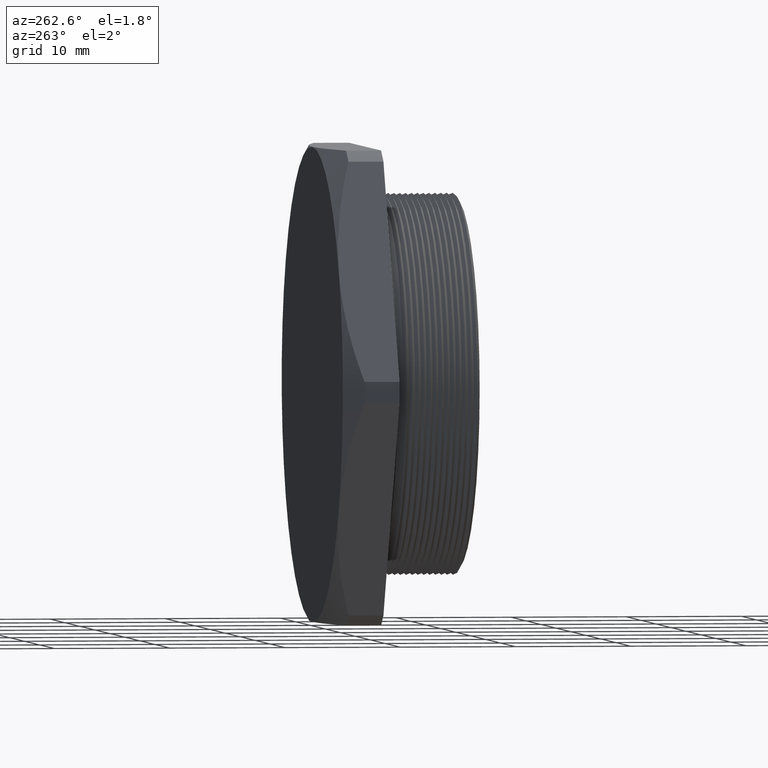
[diagram: clean part render]
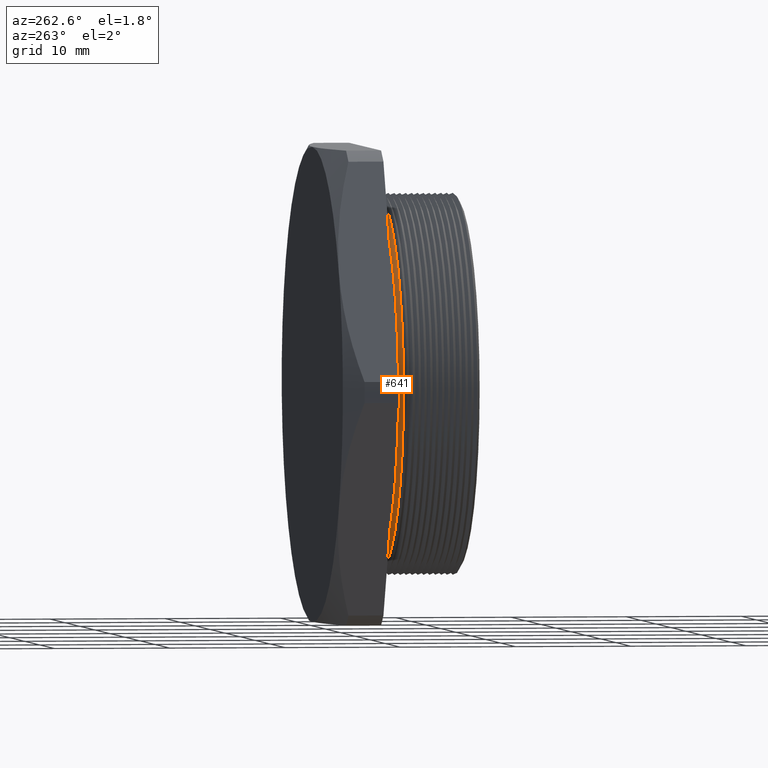
[diagram: same view with one face highlighted and labeled with its STEP entity id]
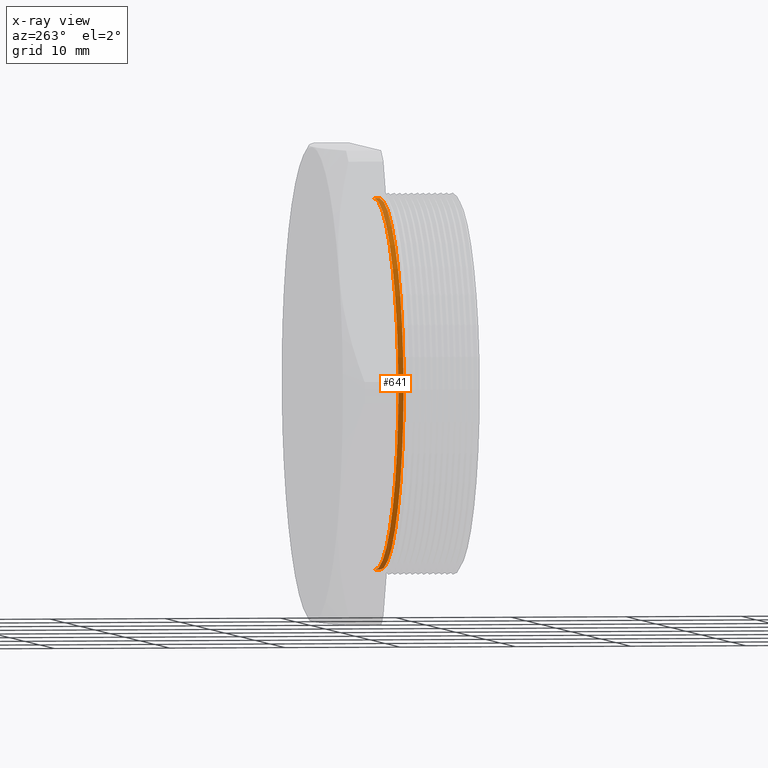
[diagram: x-ray of the same camera — body ghosted, the highlighted face saturated]
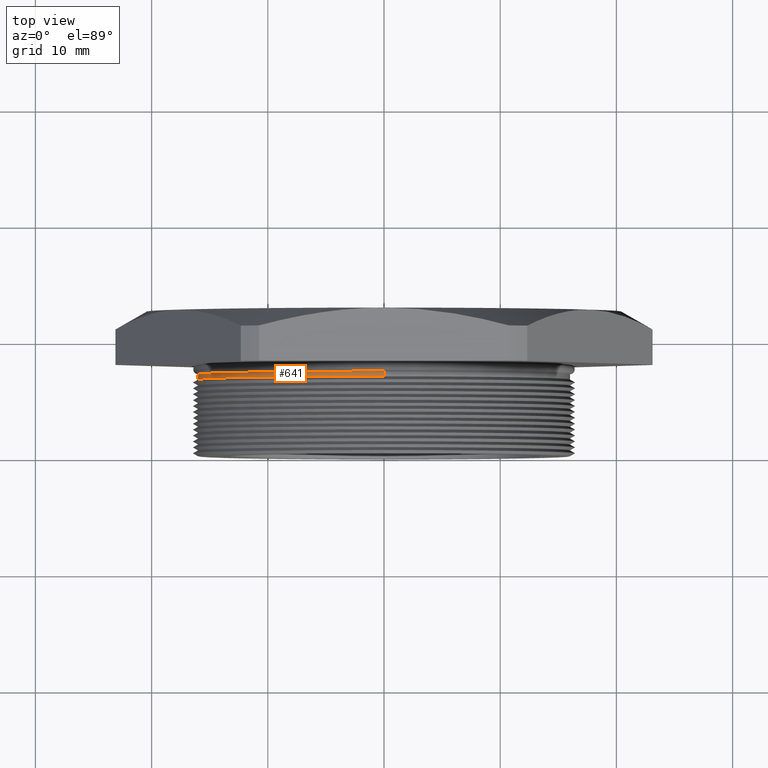
[diagram: same view with one face highlighted and labeled with its STEP entity id]
A machine part, auxiliary view. The second image highlights one B-rep face of the part: STEP entity #641.
The next image is the same camera in x-ray: the body ghosted, the highlighted face saturated — about 12% of this face is hidden behind the body in this view.
A second angle (top view) of the same face is appended — the face is thin or edge-on in the first view.
In plain terms, the highlighted cylindrical surface (partial cylindrical patch) has radius 16.002 mm, axis along (0, -1, 0).
Its self-contained STEP definition (entity closure, byte-faithful):
#358 = VERTEX_POINT ( 'NONE', #1365 ) ;
#410 = VERTEX_POINT ( 'NONE', #1454 ) ;
#542 = EDGE_CURVE ( 'NONE', #410, #548, #1715, .T. ) ;
#545 = EDGE_CURVE ( 'NONE', #358, #547, #1711, .T. ) ;
#547 = VERTEX_POINT ( 'NONE', #1707 ) ;
#548 = VERTEX_POINT ( 'NONE', #1706 ) ;
#641 = ADVANCED_FACE ( 'NONE', ( #1887 ), #1886, .T. ) ;
#642 = EDGE_LOOP ( 'NONE', ( #643, #644, #657, #658 ) ) ;
#643 = ORIENTED_EDGE ( 'NONE', *, *, #542, .F. ) ;
#644 = ORIENTED_EDGE ( 'NONE', *, *, #656, .F. ) ;
#656 = EDGE_CURVE ( 'NONE', #358, #410, #1930, .T. ) ;
#657 = ORIENTED_EDGE ( 'NONE', *, *, #545, .T. ) ;
#658 = ORIENTED_EDGE ( 'NONE', *, *, #659, .F. ) ;
#659 = EDGE_CURVE ( 'NONE', #548, #547, #1925, .T. ) ;
#1365 = CARTESIAN_POINT ( 'NONE',  ( 0.0000000000000000000, 0.2778020518525162700, -0.6300000000000000000 ) ) ;
#1454 = CARTESIAN_POINT ( 'NONE',  ( 7.715274834628325400E-017, 0.2778020518525162700, 0.6300000000000000000 ) ) ;
#1706 = CARTESIAN_POINT ( 'NONE',  ( 7.715274834628325400E-017, 0.2599999999999999000, 0.6300000000000000000 ) ) ;
#1707 = CARTESIAN_POINT ( 'NONE',  ( 0.0000000000000000000, 0.2599999999999999000, -0.6300000000000000000 ) ) ;
#1708 = DIRECTION ( 'NONE',  ( 0.0000000000000000000, -1.000000000000000000, 0.0000000000000000000 ) ) ;
#1709 = VECTOR ( 'NONE', #1708, 39.37007874015748100 ) ;
#1710 = CARTESIAN_POINT ( 'NONE',  ( 0.0000000000000000000, 0.0000000000000000000, -0.6300000000000000000 ) ) ;
#1711 = LINE ( 'NONE', #1710, #1709 ) ;
#1712 = DIRECTION ( 'NONE',  ( 0.0000000000000000000, -1.000000000000000000, 0.0000000000000000000 ) ) ;
#1713 = VECTOR ( 'NONE', #1712, 39.37007874015748100 ) ;
#1714 = CARTESIAN_POINT ( 'NONE',  ( 7.715274834628325400E-017, 0.0000000000000000000, 0.6300000000000000000 ) ) ;
#1715 = LINE ( 'NONE', #1714, #1713 ) ;
#1884 = AXIS2_PLACEMENT_3D ( 'NONE', #1933, #1932, #1931 ) ;
#1886 = CYLINDRICAL_SURFACE ( 'NONE', #1884, 0.6300000000000000000 ) ;
#1887 = FACE_OUTER_BOUND ( 'NONE', #642, .T. ) ;
#1921 = DIRECTION ( 'NONE',  ( 0.0000000000000000000, 0.0000000000000000000, -1.000000000000000000 ) ) ;
#1922 = DIRECTION ( 'NONE',  ( 0.0000000000000000000, -1.000000000000000000, 0.0000000000000000000 ) ) ;
#1923 = CARTESIAN_POINT ( 'NONE',  ( 0.0000000000000000000, 0.2599999999999999000, 0.0000000000000000000 ) ) ;
#1924 = AXIS2_PLACEMENT_3D ( 'NONE', #1923, #1922, #1921 ) ;
#1925 = CIRCLE ( 'NONE', #1924, 0.6300000000000000000 ) ;
#1926 = DIRECTION ( 'NONE',  ( 0.0000000000000000000, 0.0000000000000000000, 1.000000000000000000 ) ) ;
#1927 = DIRECTION ( 'NONE',  ( 0.0000000000000000000, 1.000000000000000000, 0.0000000000000000000 ) ) ;
#1928 = CARTESIAN_POINT ( 'NONE',  ( 0.0000000000000000000, 0.2778020518525162700, 0.0000000000000000000 ) ) ;
#1929 = AXIS2_PLACEMENT_3D ( 'NONE', #1928, #1927, #1926 ) ;
#1930 = CIRCLE ( 'NONE', #1929, 0.6300000000000000000 ) ;
#1931 = DIRECTION ( 'NONE',  ( 0.0000000000000000000, 0.0000000000000000000, -1.000000000000000000 ) ) ;
#1932 = DIRECTION ( 'NONE',  ( 0.0000000000000000000, -1.000000000000000000, 0.0000000000000000000 ) ) ;
#1933 = CARTESIAN_POINT ( 'NONE',  ( 0.0000000000000000000, 0.0000000000000000000, 0.0000000000000000000 ) ) ;